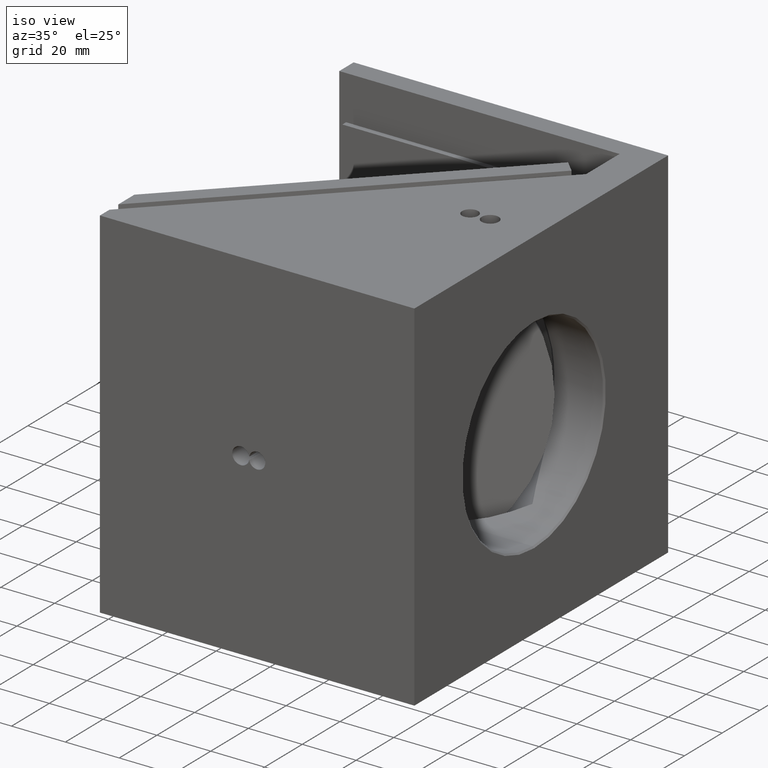
[diagram: clean part render]
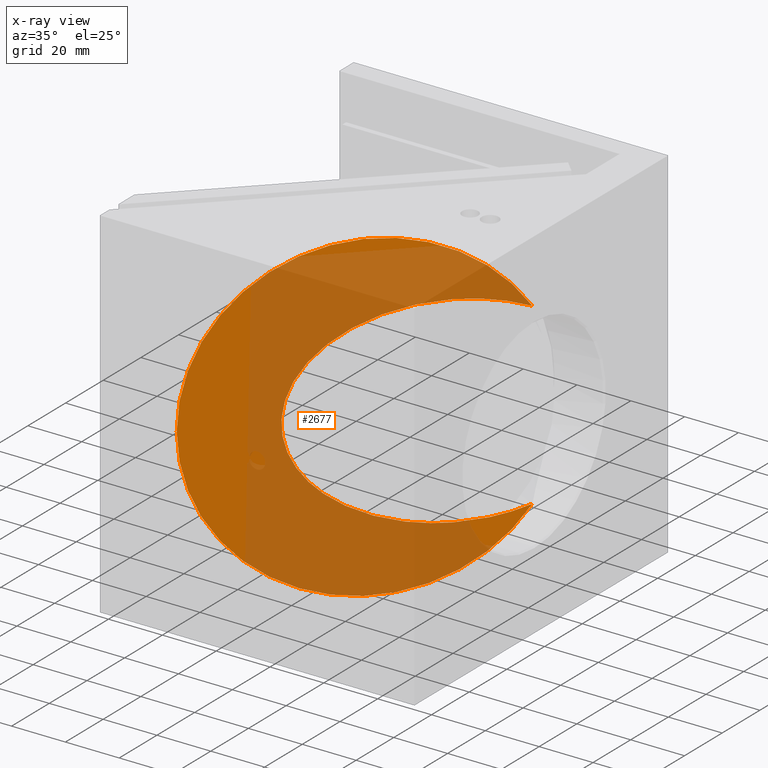
[diagram: x-ray — body ghosted, one internal face saturated and labeled with its STEP entity id]
A machine part, iso view, then the same camera in x-ray: the body is ghosted and one INTERNAL B-rep face — a face not visible from any outside direction — is saturated and labeled: STEP entity #2677.
In plain terms, the highlighted planar face has unit normal (-0.7071, 0.7071, 0).
Its self-contained STEP definition (entity closure, byte-faithful):
#1748 = VERTEX_POINT ( 'NONE', #15411 ) ;
#1761 = EDGE_CURVE ( 'NONE', #1748, #1779, #15483, .T. ) ;
#1779 = VERTEX_POINT ( 'NONE', #15558 ) ;
#2029 = EDGE_CURVE ( 'NONE', #2030, #2031, #16049, .T. ) ;
#2030 = VERTEX_POINT ( 'NONE', #16051 ) ;
#2031 = VERTEX_POINT ( 'NONE', #16050 ) ;
#2448 = EDGE_CURVE ( 'NONE', #2451, #2030, #16715, .T. ) ;
#2451 = VERTEX_POINT ( 'NONE', #16673 ) ;
#2457 = EDGE_CURVE ( 'NONE', #2031, #1748, #16706, .T. ) ;
#2668 = EDGE_CURVE ( 'NONE', #1779, #2451, #17215, .T. ) ;
#2677 = ADVANCED_FACE ( 'NONE', ( #17204 ), #17242, .T. ) ;
#2680 = EDGE_LOOP ( 'NONE', ( #2777, #2779, #2780, #2781, #2782 ) ) ;
#2777 = ORIENTED_EDGE ( 'NONE', *, *, #2448, .T. ) ;
#2779 = ORIENTED_EDGE ( 'NONE', *, *, #2029, .T. ) ;
#2780 = ORIENTED_EDGE ( 'NONE', *, *, #2457, .T. ) ;
#2781 = ORIENTED_EDGE ( 'NONE', *, *, #1761, .T. ) ;
#2782 = ORIENTED_EDGE ( 'NONE', *, *, #2668, .T. ) ;
#15411 = CARTESIAN_POINT ( 'NONE',  ( 3.280742239866326800, 3.046411127559318600, 1.316487355831463600 ) ) ;
#15479 = DIRECTION ( 'NONE',  ( -0.7071067811865461300, -0.7071067811865491300, 0.0000000000000000000 ) ) ;
#15480 = DIRECTION ( 'NONE',  ( -0.7071067811865490200, 0.7071067811865460200, 0.0000000000000000000 ) ) ;
#15481 = CARTESIAN_POINT ( 'NONE',  ( 1.890267741709125800, 1.655936629402112300, 2.624999999999999100 ) ) ;
#15482 = AXIS2_PLACEMENT_3D ( 'NONE', #15481, #15480, #15479 ) ;
#15483 = CIRCLE ( 'NONE', #15482, 2.361999999999996500 ) ;
#15558 = CARTESIAN_POINT ( 'NONE',  ( 0.2200815245465064500, -0.01424958776051422400, 2.624999999999999100 ) ) ;
#16045 = CARTESIAN_POINT ( 'NONE',  ( 2.597012376498457200, 2.362681264191446800, 1.148622044999999300 ) ) ;
#16046 = CARTESIAN_POINT ( 'NONE',  ( -0.3557435335015305400, -0.5900746458085536200, 1.148622045000000000 ) ) ;
#16047 = CARTESIAN_POINT ( 'NONE',  ( -0.3557435335015305400, -0.5900746458085537300, 4.101377954999999400 ) ) ;
#16048 = CARTESIAN_POINT ( 'NONE',  ( 2.597012376498457200, 2.362681264191447200, 4.101377954999999400 ) ) ;
#16049 =( BOUNDED_CURVE ( )  B_SPLINE_CURVE ( 3, ( #16048, #16047, #16046, #16045 ),
 .UNSPECIFIED., .F., .T. ) 
 B_SPLINE_CURVE_WITH_KNOTS ( ( 4, 4 ),
 ( 1.570796326794896800, 4.712388980384689700 ),
 .UNSPECIFIED. ) 
 CURVE ( )  GEOMETRIC_REPRESENTATION_ITEM ( )  RATIONAL_B_SPLINE_CURVE ( ( 1.000000000000000000, 0.3333333333333333700, 0.3333333333333333700, 1.000000000000000000 ) ) 
 REPRESENTATION_ITEM ( '' )  );
#16050 = CARTESIAN_POINT ( 'NONE',  ( 2.597012376498457200, 2.362681264191446800, 1.148622044999999300 ) ) ;
#16051 = CARTESIAN_POINT ( 'NONE',  ( 2.597012376498457200, 2.362681264191447200, 4.101377954999999400 ) ) ;
#16673 = CARTESIAN_POINT ( 'NONE',  ( 3.280742239866325500, 3.046411127559317300, 3.933512644168535700 ) ) ;
#16706 =( BOUNDED_CURVE ( )  B_SPLINE_CURVE ( 3, ( #16736, #16735, #16734, #16733 ),
 .UNSPECIFIED., .F., .T. ) 
 B_SPLINE_CURVE_WITH_KNOTS ( ( 4, 4 ),
 ( 4.712388980384689700, 5.193893356808324300 ),
 .UNSPECIFIED. ) 
 CURVE ( )  GEOMETRIC_REPRESENTATION_ITEM ( )  RATIONAL_B_SPLINE_CURVE ( ( 1.000000000000000000, 0.9807726019800902000, 0.9807726019800902000, 1.000000000000000000 ) ) 
 REPRESENTATION_ITEM ( '' )  );
#16711 = CARTESIAN_POINT ( 'NONE',  ( 2.597012376498457200, 2.362681264191447200, 4.101377954999999400 ) ) ;
#16712 = CARTESIAN_POINT ( 'NONE',  ( 2.836291425092670100, 2.601960312785660500, 4.101377954999999400 ) ) ;
#16713 = CARTESIAN_POINT ( 'NONE',  ( 3.068669403429163700, 2.834338291122155100, 4.044325888601000500 ) ) ;
#16714 = CARTESIAN_POINT ( 'NONE',  ( 3.280742239866325500, 3.046411127559317300, 3.933512644168535700 ) ) ;
#16715 =( BOUNDED_CURVE ( )  B_SPLINE_CURVE ( 3, ( #16714, #16713, #16712, #16711 ),
 .UNSPECIFIED., .F., .T. ) 
 B_SPLINE_CURVE_WITH_KNOTS ( ( 4, 4 ),
 ( 1.089291950371263000, 1.570796326794896800 ),
 .UNSPECIFIED. ) 
 CURVE ( )  GEOMETRIC_REPRESENTATION_ITEM ( )  RATIONAL_B_SPLINE_CURVE ( ( 1.000000000000000000, 0.9807726019800903100, 0.9807726019800903100, 1.000000000000000000 ) ) 
 REPRESENTATION_ITEM ( '' )  );
#16733 = CARTESIAN_POINT ( 'NONE',  ( 3.280742239866326800, 3.046411127559318600, 1.316487355831463600 ) ) ;
#16734 = CARTESIAN_POINT ( 'NONE',  ( 3.068669403429164200, 2.834338291122155500, 1.205674111398999300 ) ) ;
#16735 = CARTESIAN_POINT ( 'NONE',  ( 2.836291425092670500, 2.601960312785661000, 1.148622044999999300 ) ) ;
#16736 = CARTESIAN_POINT ( 'NONE',  ( 2.597012376498457200, 2.362681264191446800, 1.148622044999999300 ) ) ;
#17204 = FACE_OUTER_BOUND ( 'NONE', #2680, .T. ) ;
#17211 = DIRECTION ( 'NONE',  ( -0.7071067811865461300, -0.7071067811865491300, 0.0000000000000000000 ) ) ;
#17212 = DIRECTION ( 'NONE',  ( -0.7071067811865490200, 0.7071067811865460200, 0.0000000000000000000 ) ) ;
#17213 = CARTESIAN_POINT ( 'NONE',  ( 1.890267741709125800, 1.655936629402112300, 2.624999999999999100 ) ) ;
#17214 = AXIS2_PLACEMENT_3D ( 'NONE', #17213, #17212, #17211 ) ;
#17215 = CIRCLE ( 'NONE', #17214, 2.361999999999996500 ) ;
#17238 = DIRECTION ( 'NONE',  ( -0.7071067811865460200, -0.7071067811865490200, 0.0000000000000000000 ) ) ;
#17239 = DIRECTION ( 'NONE',  ( -0.7071067811865490200, 0.7071067811865460200, 0.0000000000000000000 ) ) ;
#17240 = CARTESIAN_POINT ( 'NONE',  ( 1.890267741709125800, 1.655936629402112300, 2.624999999999999100 ) ) ;
#17241 = AXIS2_PLACEMENT_3D ( 'NONE', #17240, #17239, #17238 ) ;
#17242 = PLANE ( 'NONE',  #17241 ) ;